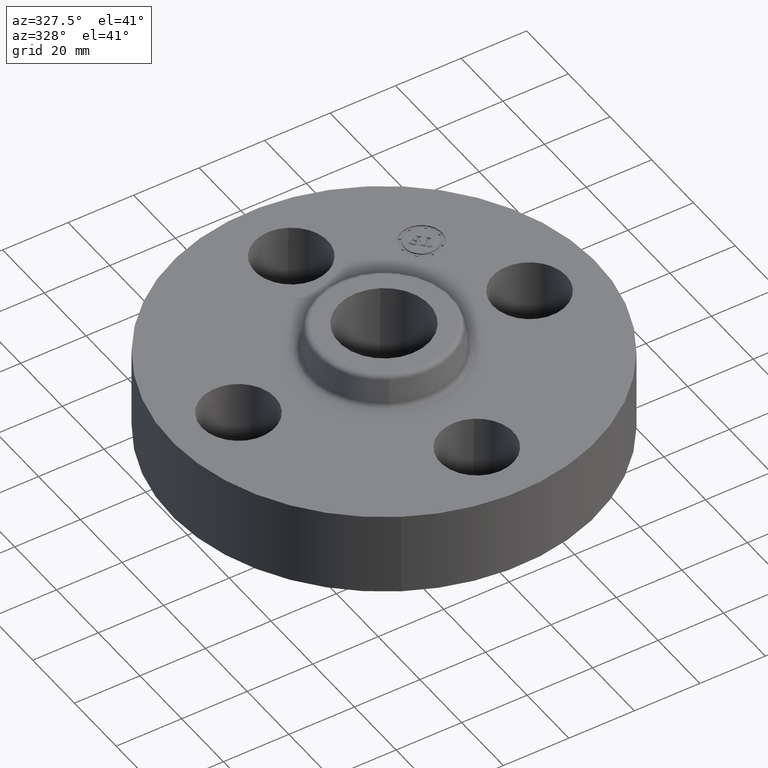
[diagram: clean part render]
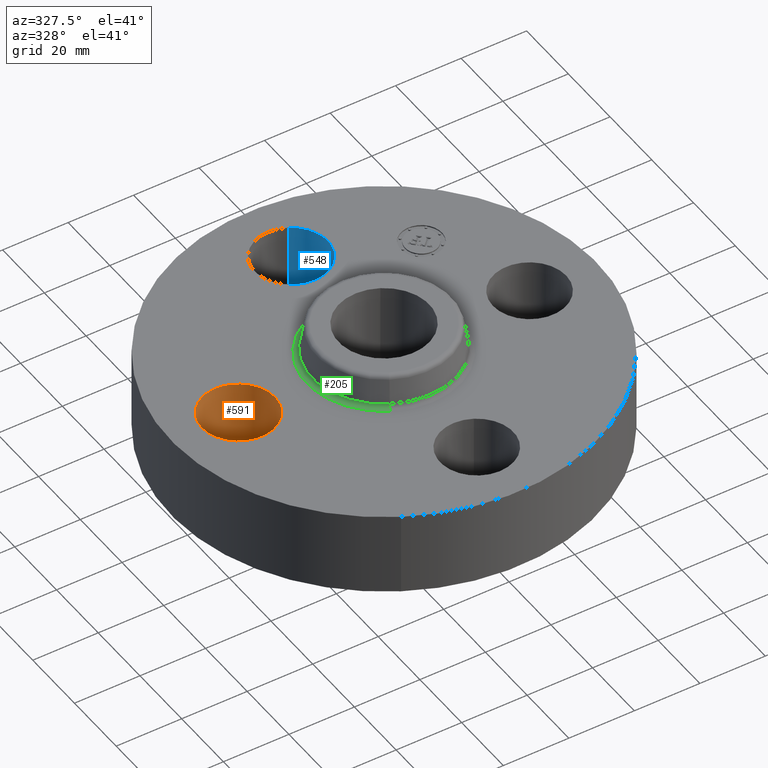
[diagram: same view with three faces highlighted in distinct colors, each labeled with its STEP entity id]
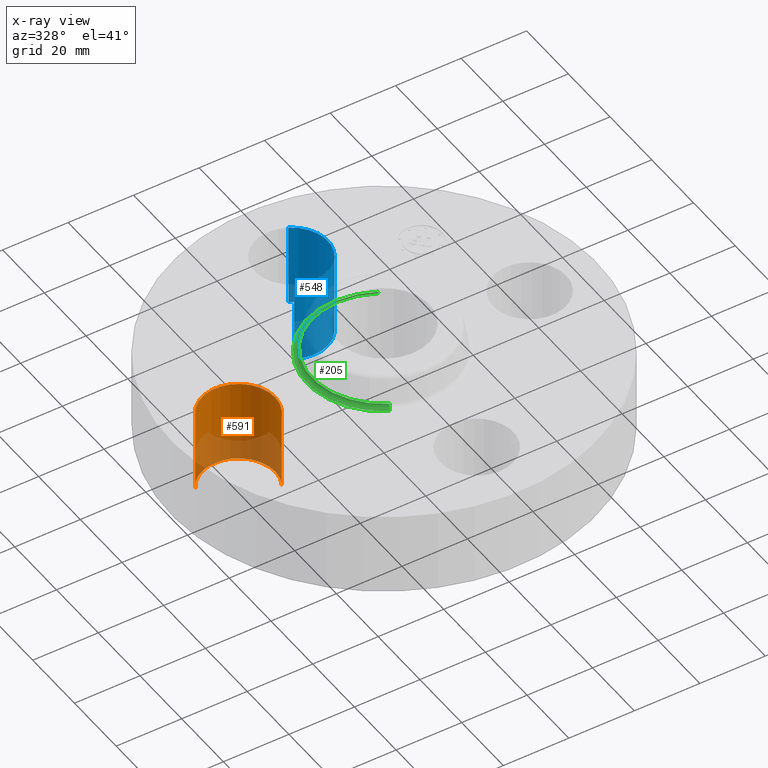
[diagram: x-ray of the same camera — body ghosted, the three highlighted faces saturated]
A machine part, auxiliary view with three faces highlighted in distinct colors.
The next image is the same camera in x-ray (body ghosted, the three faces saturated) — at least one of them is partly hidden behind the body in this view.
Their STEP definitions:

[orange] entity #591 — the highlighted cylindrical surface (partial cylindrical patch) has radius 11.176 mm, axis along (-0, 0, -1).
#480=AXIS2_PLACEMENT_3D('Circle Axis2P3D',#478,#479,$) ;
#552=AXIS2_PLACEMENT_3D('Cylinder Axis2P3D',#549,#550,#551) ;
#582=AXIS2_PLACEMENT_3D('Circle Axis2P3D',#580,#581,$) ;
#473=CARTESIAN_POINT('Vertex',(-1.36386367277,-0.210947236987,0.)) ;
#475=CARTESIAN_POINT('Vertex',(-2.13613632724,0.210947236987,0.)) ;
#478=CARTESIAN_POINT('Axis2P3D Location',(-1.75000000001,-2.79741234551E-016,0.)) ;
#549=CARTESIAN_POINT('Axis2P3D Location',(-1.75000000001,-2.14313189852E-016,0.99606299213)) ;
#554=CARTESIAN_POINT('Line Origine',(-1.36386367277,-0.210947236987,0.500000000002)) ;
#558=CARTESIAN_POINT('Vertex',(-1.36386367277,-0.210947236987,1.)) ;
#561=CARTESIAN_POINT('Line Origine',(-2.13613632724,0.210947236987,0.500000000002)) ;
#565=CARTESIAN_POINT('Vertex',(-2.13613632724,0.210947236987,1.)) ;
#580=CARTESIAN_POINT('Axis2P3D Location',(-1.75000000001,-2.14313189852E-016,1.)) ;
#479=DIRECTION('Axis2P3D Direction',(0.,0.,-0.0393700787402)) ;
#550=DIRECTION('Axis2P3D Direction',(-0.,0.,-0.0393700787402)) ;
#551=DIRECTION('Axis2P3D XDirection',(-0.0345504945626,0.0188750212049,0.)) ;
#555=DIRECTION('Vector Direction',(0.,0.,-0.0393700787402)) ;
#562=DIRECTION('Vector Direction',(0.,0.,-0.0393700787402)) ;
#581=DIRECTION('Axis2P3D Direction',(-0.,0.,-0.0393700787402)) ;
#556=VECTOR('Line Direction',#555,0.0393700787402) ;
#563=VECTOR('Line Direction',#562,0.0393700787402) ;
#586=ORIENTED_EDGE('',*,*,#567,.F.) ;
#587=ORIENTED_EDGE('',*,*,#482,.T.) ;
#588=ORIENTED_EDGE('',*,*,#560,.T.) ;
#589=ORIENTED_EDGE('',*,*,#584,.F.) ;
#591=ADVANCED_FACE('PartBody',(#590),#553,.F.) ;
#481=CIRCLE('generated circle',#480,0.440000000002) ;
#583=CIRCLE('generated circle',#582,0.440000000002) ;
#553=CYLINDRICAL_SURFACE('generated cylinder',#552,0.440000000002) ;
#482=EDGE_CURVE('',#476,#474,#481,.T.) ;
#560=EDGE_CURVE('',#474,#559,#557,.F.) ;
#567=EDGE_CURVE('',#476,#566,#564,.F.) ;
#584=EDGE_CURVE('',#566,#559,#583,.T.) ;
#585=EDGE_LOOP('',(#586,#587,#588,#589)) ;
#590=FACE_OUTER_BOUND('',#585,.T.) ;
#557=LINE('Line',#554,#556) ;
#564=LINE('Line',#561,#563) ;
#474=VERTEX_POINT('',#473) ;
#476=VERTEX_POINT('',#475) ;
#559=VERTEX_POINT('',#558) ;
#566=VERTEX_POINT('',#565) ;

[blue] entity #548 — the highlighted cylindrical surface (partial cylindrical patch) has radius 11.176 mm, axis along (0, 0, -1).
#498=AXIS2_PLACEMENT_3D('Circle Axis2P3D',#496,#497,$) ;
#509=AXIS2_PLACEMENT_3D('Cylinder Axis2P3D',#506,#507,#508) ;
#539=AXIS2_PLACEMENT_3D('Circle Axis2P3D',#537,#538,$) ;
#491=CARTESIAN_POINT('Vertex',(-0.210947236987,1.36386367277,0.)) ;
#493=CARTESIAN_POINT('Vertex',(0.210947236987,2.13613632724,0.)) ;
#496=CARTESIAN_POINT('Axis2P3D Location',(-3.1470888887E-016,1.75000000001,0.)) ;
#506=CARTESIAN_POINT('Axis2P3D Location',(-3.21469784777E-016,1.75000000001,0.99606299213)) ;
#511=CARTESIAN_POINT('Line Origine',(-0.210947236987,1.36386367277,0.500000000002)) ;
#515=CARTESIAN_POINT('Vertex',(-0.210947236987,1.36386367277,1.)) ;
#518=CARTESIAN_POINT('Line Origine',(0.210947236987,2.13613632724,0.500000000002)) ;
#522=CARTESIAN_POINT('Vertex',(0.210947236987,2.13613632724,1.)) ;
#537=CARTESIAN_POINT('Axis2P3D Location',(-3.21469784777E-016,1.75000000001,1.)) ;
#497=DIRECTION('Axis2P3D Direction',(0.,0.,-0.0393700787402)) ;
#507=DIRECTION('Axis2P3D Direction',(0.,0.,-0.0393700787402)) ;
#508=DIRECTION('Axis2P3D XDirection',(0.0188750212049,0.0345504945626,0.)) ;
#512=DIRECTION('Vector Direction',(0.,0.,-0.0393700787402)) ;
#519=DIRECTION('Vector Direction',(0.,0.,-0.0393700787402)) ;
#538=DIRECTION('Axis2P3D Direction',(0.,0.,-0.0393700787402)) ;
#513=VECTOR('Line Direction',#512,0.0393700787402) ;
#520=VECTOR('Line Direction',#519,0.0393700787402) ;
#543=ORIENTED_EDGE('',*,*,#524,.F.) ;
#544=ORIENTED_EDGE('',*,*,#500,.T.) ;
#545=ORIENTED_EDGE('',*,*,#517,.T.) ;
#546=ORIENTED_EDGE('',*,*,#541,.F.) ;
#548=ADVANCED_FACE('PartBody',(#547),#510,.F.) ;
#499=CIRCLE('generated circle',#498,0.440000000002) ;
#540=CIRCLE('generated circle',#539,0.440000000002) ;
#510=CYLINDRICAL_SURFACE('generated cylinder',#509,0.440000000002) ;
#500=EDGE_CURVE('',#494,#492,#499,.T.) ;
#517=EDGE_CURVE('',#492,#516,#514,.F.) ;
#524=EDGE_CURVE('',#494,#523,#521,.F.) ;
#541=EDGE_CURVE('',#523,#516,#540,.T.) ;
#542=EDGE_LOOP('',(#543,#544,#545,#546)) ;
#547=FACE_OUTER_BOUND('',#542,.T.) ;
#514=LINE('Line',#511,#513) ;
#521=LINE('Line',#518,#520) ;
#492=VERTEX_POINT('',#491) ;
#494=VERTEX_POINT('',#493) ;
#516=VERTEX_POINT('',#515) ;
#523=VERTEX_POINT('',#522) ;

[green] entity #205 — the highlighted toroidal blend (fillet) surface has major radius 23.5038 mm and minor (blend) radius 1.524 mm.
#152=AXIS2_PLACEMENT_3D('Torus Axis2P3D',#149,#150,#151) ;
#165=AXIS2_PLACEMENT_3D('Circle Axis2P3D',#163,#164,$) ;
#179=AXIS2_PLACEMENT_3D('Circle Axis2P3D',#177,#178,$) ;
#191=AXIS2_PLACEMENT_3D('Circle Axis2P3D',#189,#190,$) ;
#196=AXIS2_PLACEMENT_3D('Circle Axis2P3D',#194,#195,$) ;
#149=CARTESIAN_POINT('Axis2P3D Location',(0.,0.,1.06)) ;
#158=CARTESIAN_POINT('Vertex',(0.443634493838,0.812067493898,1.)) ;
#160=CARTESIAN_POINT('Vertex',(-0.443634493838,-0.812067493898,1.)) ;
#163=CARTESIAN_POINT('Axis2P3D Location',(0.443634493838,0.812067493898,1.06)) ;
#167=CARTESIAN_POINT('Vertex',(0.415305974593,0.760212487246,1.04958110934)) ;
#174=CARTESIAN_POINT('Vertex',(-0.415305974593,-0.760212487246,1.04958110934)) ;
#177=CARTESIAN_POINT('Axis2P3D Location',(-0.443634493838,-0.812067493898,1.06)) ;
#189=CARTESIAN_POINT('Axis2P3D Location',(0.,0.,1.)) ;
#194=CARTESIAN_POINT('Axis2P3D Location',(0.,0.,1.04958110934)) ;
#150=DIRECTION('Axis2P3D Direction',(0.,0.,-0.0393700787402)) ;
#151=DIRECTION('Axis2P3D XDirection',(-0.0188750212049,-0.0345504945626,0.)) ;
#164=DIRECTION('Axis2P3D Direction',(-0.0345504945626,0.0188750212049,0.)) ;
#178=DIRECTION('Axis2P3D Direction',(0.0345504945626,-0.0188750212049,0.)) ;
#190=DIRECTION('Axis2P3D Direction',(0.,0.,-0.0393700787402)) ;
#195=DIRECTION('Axis2P3D Direction',(0.,0.,-0.0393700787402)) ;
#200=ORIENTED_EDGE('',*,*,#193,.F.) ;
#201=ORIENTED_EDGE('',*,*,#181,.T.) ;
#202=ORIENTED_EDGE('',*,*,#198,.T.) ;
#203=ORIENTED_EDGE('',*,*,#169,.F.) ;
#205=ADVANCED_FACE('PartBody',(#204),#153,.F.) ;
#166=CIRCLE('generated circle',#165,0.0600000000002) ;
#180=CIRCLE('generated circle',#179,0.0600000000002) ;
#192=CIRCLE('generated circle',#191,0.925345977874) ;
#197=CIRCLE('generated circle',#196,0.866257512693) ;
#153=TOROIDAL_SURFACE('homeo Torus',#152,0.925345977874,0.0600000000002) ;
#169=EDGE_CURVE('',#159,#168,#166,.T.) ;
#181=EDGE_CURVE('',#161,#175,#180,.T.) ;
#193=EDGE_CURVE('',#161,#159,#192,.T.) ;
#198=EDGE_CURVE('',#175,#168,#197,.T.) ;
#199=EDGE_LOOP('',(#200,#201,#202,#203)) ;
#204=FACE_OUTER_BOUND('',#199,.T.) ;
#159=VERTEX_POINT('',#158) ;
#161=VERTEX_POINT('',#160) ;
#168=VERTEX_POINT('',#167) ;
#175=VERTEX_POINT('',#174) ;